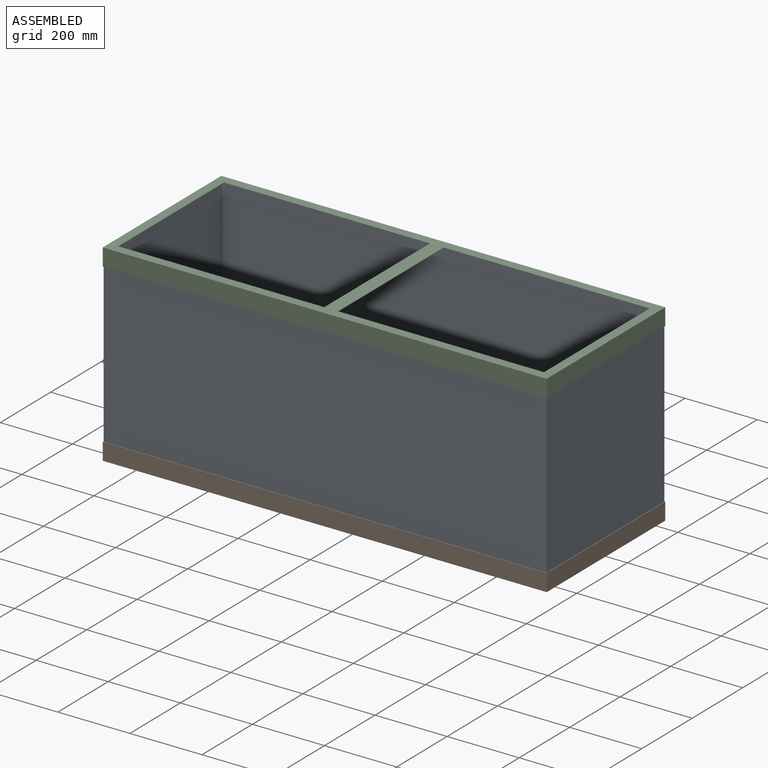
[diagram: assembled view]
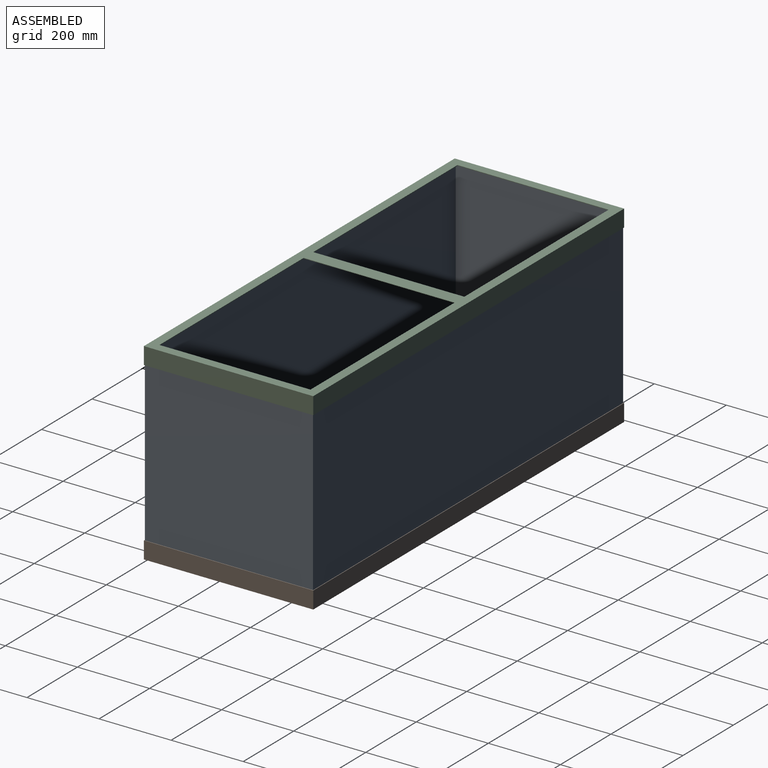
[diagram: assembled view, second angle]
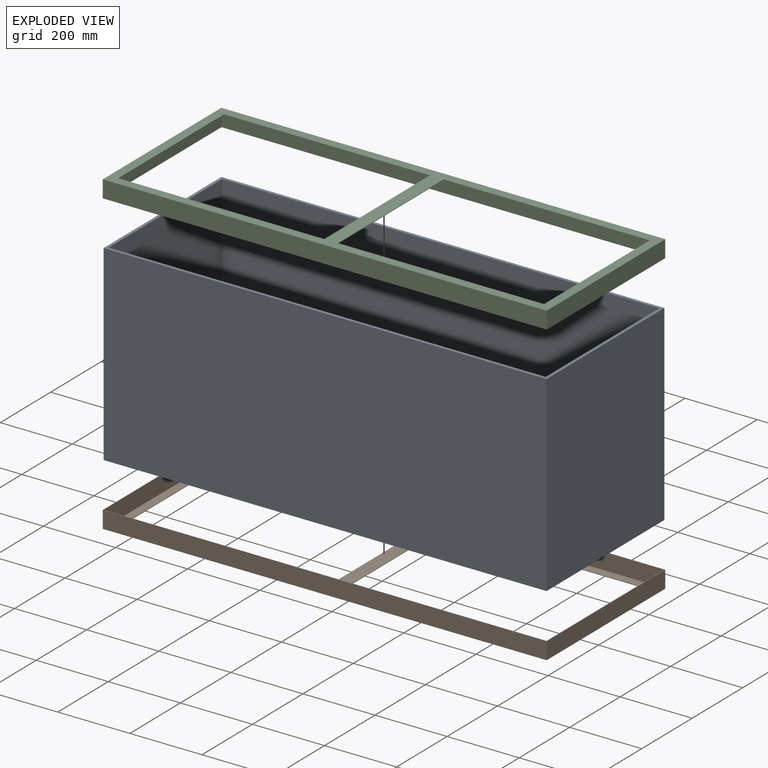
[diagram: exploded view]
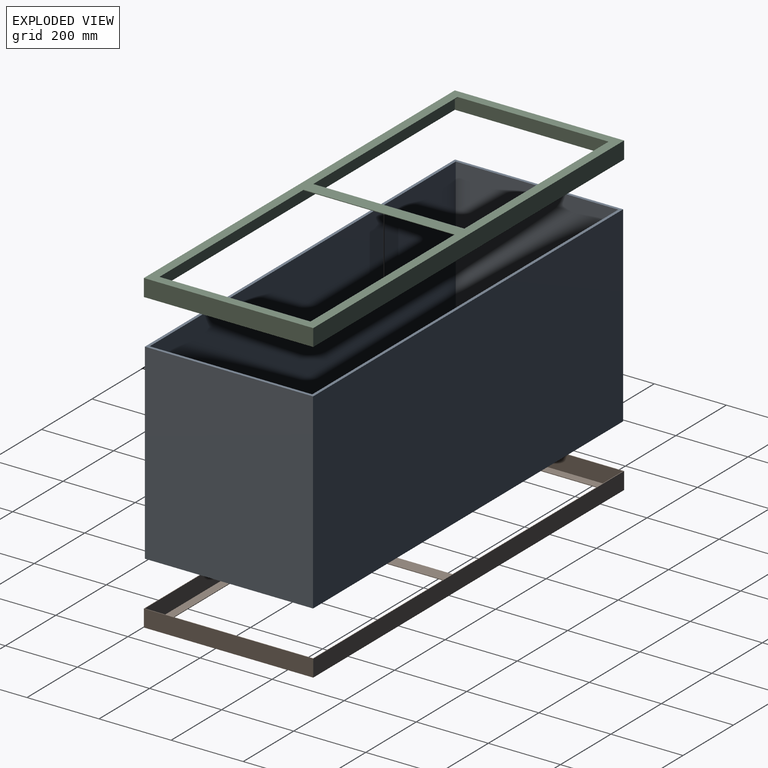
[diagram: exploded view, second angle]
ASSEMBLY  parts=3 mates=2
PART A: 11 faces, bbox 1228.7x466.7x531.8 mm
  f0: plane 1228.73x466.73mm, normal (0,0,1), area 26663.3mm2, adj f1,f2,f3,f4,f6,f7,f8,f9
  f1: plane 1228.73x531.81mm, normal (0,1,0), area 653451.3mm2, adj f0,f2,f4,f5
  f2: plane 531.81x466.73mm, normal (-1,0,0), area 248210.2mm2, adj f0,f1,f3,f5
  f3: plane 1228.73x531.81mm, normal (0,-1,0), area 653451.3mm2, adj f0,f2,f4,f5
  f4: plane 531.81x466.73mm, normal (1,0,0), area 248210.2mm2, adj f0,f1,f3,f5
  f5: plane 1228.73x466.73mm, normal (0,0,-1), area 573476.7mm2, adj f1,f2,f3,f4
  f6: plane 1212.85x525.86mm, normal (0,-1,0), area 637788.5mm2, adj f0,f7,f9,f10
  f7: plane 525.86x450.85mm, normal (1,0,0), area 237083.7mm2, adj f0,f6,f8,f10
  f8: plane 1212.85x525.86mm, normal (0,1,0), area 637788.5mm2, adj f0,f7,f9,f10
  f9: plane 525.86x450.85mm, normal (-1,0,0), area 237083.7mm2, adj f0,f6,f8,f10
  f10: plane 1212.85x450.85mm, normal (0,0,1), area 546813.4mm2, adj f6,f7,f8,f9
PART B: 19 faces, bbox 1231.9x469.9x47.6 mm
  f0: plane 1231.9x469.9mm, normal (0,0,-1), area 99838.5mm2, adj f3,f4,f5,f6,f11,f12,f13,f14
  f1: plane 1228.73x466.73mm, normal (0,0,1), area 94445.4mm2, adj f7,f8,f9,f10,f11,f12,f13,f14
  f2: plane 1231.9x469.9mm, normal (0,0,1), area 5393.1mm2, adj f3,f4,f5,f6,f7,f8,f9,f10
  f3: plane 1231.9x47.63mm, normal (0,1,0), area 58669.2mm2, adj f0,f2,f4,f6
  f4: plane 469.9x47.63mm, normal (-1,0,0), area 22379mm2, adj f0,f2,f3,f5
  f5: plane 1231.9x47.63mm, normal (0,-1,0), area 58669.2mm2, adj f0,f2,f4,f6
  f6: plane 469.9x47.63mm, normal (1,0,0), area 22379mm2, adj f0,f2,f3,f5
  f7: plane 1228.73x46.04mm, normal (0,-1,0), area 56567.4mm2, adj f1,f2,f8,f10
  f8: plane 466.73x46.04mm, normal (1,0,0), area 21486.9mm2, adj f1,f2,f7,f9
  f9: plane 1228.73x46.04mm, normal (0,1,0), area 56567.4mm2, adj f1,f2,f8,f10
  f10: plane 466.73x46.04mm, normal (-1,0,0), area 21486.9mm2, adj f1,f2,f7,f9
  f11: plane 571.5x1.59mm, normal (0,1,0), area 907.3mm2, adj f0,f1,f12,f14
  f12: plane 419.1x1.59mm, normal (1,0,0), area 665.3mm2, adj f0,f1,f11,f13
  f13: plane 571.5x1.59mm, normal (0,-1,0), area 907.3mm2, adj f0,f1,f12,f14
  f14: plane 419.1x1.59mm, normal (-1,0,0), area 665.3mm2, adj f0,f1,f11,f13
  f15: plane 571.5x1.59mm, normal (0,1,0), area 907.3mm2, adj f0,f1,f16,f18
  f16: plane 419.1x1.59mm, normal (1,0,0), area 665.3mm2, adj f0,f1,f15,f17
  f17: plane 571.5x1.59mm, normal (0,-1,0), area 907.3mm2, adj f0,f1,f16,f18
  f18: plane 419.1x1.59mm, normal (-1,0,0), area 665.3mm2, adj f0,f1,f15,f17
PART C: same geometry as B
PLACE A t=(-336.63,106.42,-92.59)mm
PLACE B t=(-400.62,-149.09,-94.17)mm
PLACE C rot(axis=(1,0,0),180deg) t=(-400.62,-124.86,440.81)mm
MATE fastened B.f1 <-> A.f5  axis (0,0,1) through (-439.22,-136.98,-92.59)mm
MATE fastened C.f1 <-> A.f0  axis (0,0,-1) through (-1053.58,-370.34,439.23)mm
